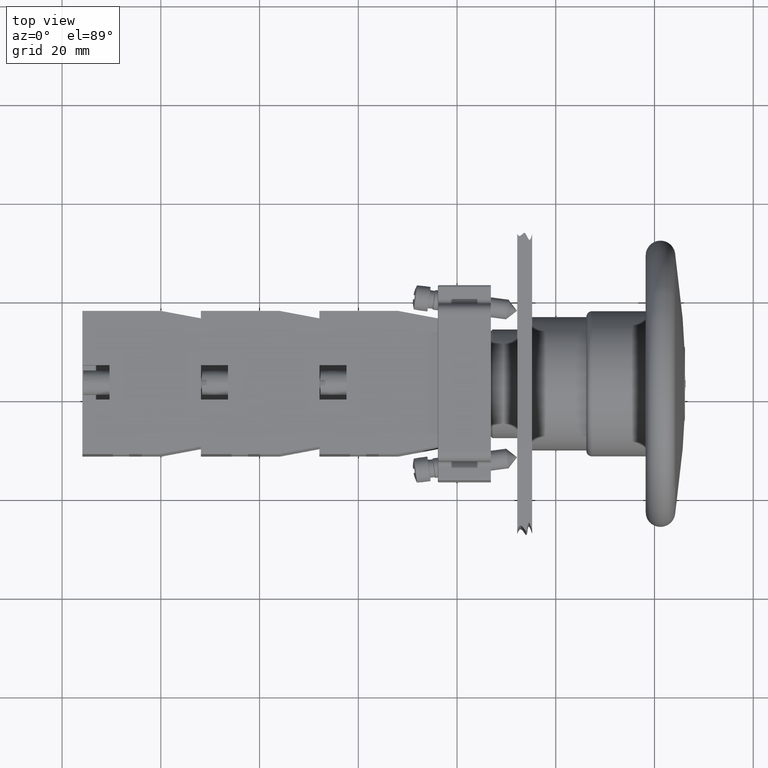
[diagram: clean part render]
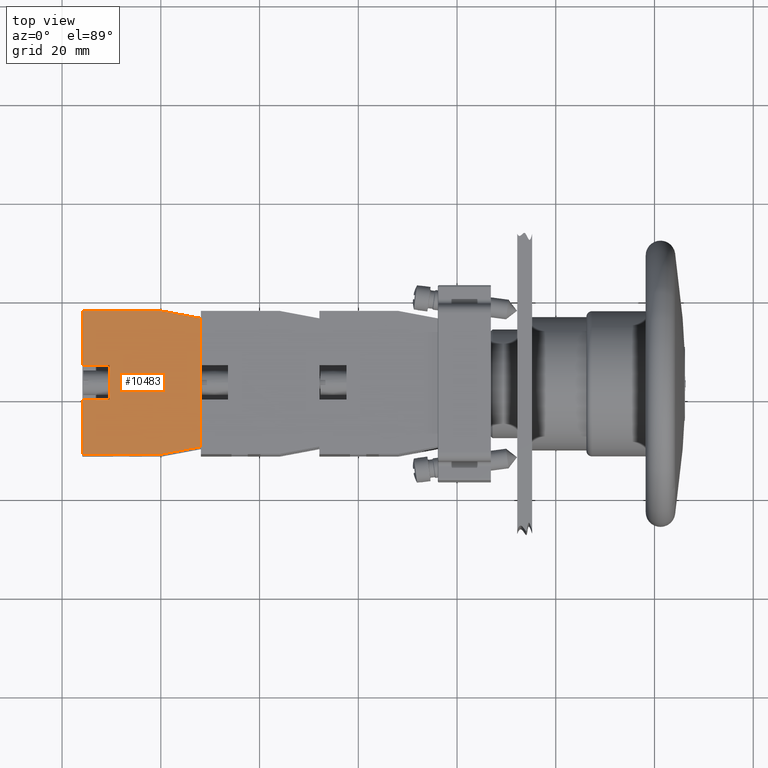
[diagram: same view with one face highlighted and labeled with its STEP entity id]
A machine part, top view. The second image highlights one B-rep face of the part: STEP entity #10483.
In plain terms, the highlighted planar face has unit normal (-0, 0, 1).
Its self-contained STEP definition (entity closure, byte-faithful):
#8786=CARTESIAN_POINT('',(-44.936741828918457,7.797073323279626,14.699999999999999));
#8787=VERTEX_POINT('',#8786);
#8794=CARTESIAN_POINT('',(-44.936741828918471,23.797073323279623,14.699999999999999));
#8795=VERTEX_POINT('',#8794);
#8796=CARTESIAN_POINT('',(-44.936741828918457,7.797073323279626,14.699999999999999));
#8797=DIRECTION('',(0.0,1.0,0.0));
#8798=VECTOR('',#8797,15.999999999999996);
#8799=LINE('',#8796,#8798);
#8800=EDGE_CURVE('',#8787,#8795,#8799,.T.);
#8867=CARTESIAN_POINT('',(-43.436741828918457,-0.202926676720380,14.699999999999999));
#8868=VERTEX_POINT('',#8867);
#8875=CARTESIAN_POINT('',(-43.436741828918457,-0.202926676720380,14.699999999999999));
#8876=DIRECTION('',(-0.184288535050185,0.982872186934322,0.0));
#8877=VECTOR('',#8876,8.139410298049860);
#8878=LINE('',#8875,#8877);
#8879=EDGE_CURVE('',#8868,#8787,#8878,.T.);
#9018=CARTESIAN_POINT('',(-17.436741828918457,-0.202926676720377,14.699999999999999));
#9019=VERTEX_POINT('',#9018);
#9026=CARTESIAN_POINT('',(-17.436741828918457,-0.202926676720377,14.699999999999999));
#9027=DIRECTION('',(-1.0,0.0,0.0));
#9028=VECTOR('',#9027,26.0);
#9029=LINE('',#9026,#9028);
#9030=EDGE_CURVE('',#9019,#8868,#9029,.T.);
#9111=CARTESIAN_POINT('',(-15.936741828918466,7.797073323279626,14.699999999999999));
#9112=VERTEX_POINT('',#9111);
#9119=CARTESIAN_POINT('',(-15.936741828918466,7.797073323279626,14.699999999999999));
#9120=DIRECTION('',(-0.184288535050184,-0.982872186934322,0.0));
#9121=VECTOR('',#9120,8.139410298049855);
#9122=LINE('',#9119,#9121);
#9123=EDGE_CURVE('',#9112,#9019,#9122,.T.);
#10218=CARTESIAN_POINT('',(-26.936741828918468,18.297073323279626,14.699999999999999));
#10219=VERTEX_POINT('',#10218);
#10228=CARTESIAN_POINT('',(-26.936741828918468,23.797073323279626,14.699999999999999));
#10229=VERTEX_POINT('',#10228);
#10230=CARTESIAN_POINT('',(-26.936741828918468,23.797073323279626,14.699999999999999));
#10231=DIRECTION('',(0.0,-1.0,0.0));
#10232=VECTOR('',#10231,5.500000000000000);
#10233=LINE('',#10230,#10232);
#10234=EDGE_CURVE('',#10229,#10219,#10233,.T.);
#10289=CARTESIAN_POINT('',(-33.936741828918464,18.297073323279619,14.699999999999999));
#10290=VERTEX_POINT('',#10289);
#10298=CARTESIAN_POINT('',(-33.936741828918464,23.797073323279623,14.699999999999999));
#10299=VERTEX_POINT('',#10298);
#10306=CARTESIAN_POINT('',(-33.936741828918464,18.297073323279619,14.699999999999999));
#10307=DIRECTION('',(0.0,1.0,0.0));
#10308=VECTOR('',#10307,5.500000000000004);
#10309=LINE('',#10306,#10308);
#10310=EDGE_CURVE('',#10290,#10299,#10309,.T.);
#10323=CARTESIAN_POINT('',(-26.936741828918468,18.297073323279626,14.699999999999999));
#10324=DIRECTION('',(-1.0,0.0,0.0));
#10325=VECTOR('',#10324,6.999999999999996);
#10326=LINE('',#10323,#10325);
#10327=EDGE_CURVE('',#10219,#10290,#10326,.T.);
#10343=CARTESIAN_POINT('',(-15.936741828918466,23.797073323279626,14.699999999999999));
#10344=VERTEX_POINT('',#10343);
#10345=CARTESIAN_POINT('',(-26.936741828918468,23.797073323279626,14.699999999999999));
#10346=DIRECTION('',(1.0,0.0,0.0));
#10347=VECTOR('',#10346,11.000000000000002);
#10348=LINE('',#10345,#10347);
#10349=EDGE_CURVE('',#10229,#10344,#10348,.T.);
#10366=CARTESIAN_POINT('',(-44.936741828918471,23.797073323279623,14.699999999999999));
#10367=DIRECTION('',(1.0,0.0,0.0));
#10368=VECTOR('',#10367,11.000000000000007);
#10369=LINE('',#10366,#10368);
#10370=EDGE_CURVE('',#8795,#10299,#10369,.T.);
#10414=CARTESIAN_POINT('',(-15.936741828918466,23.797073323279626,14.699999999999999));
#10415=DIRECTION('',(0.0,-1.0,0.0));
#10416=VECTOR('',#10415,16.0);
#10417=LINE('',#10414,#10416);
#10418=EDGE_CURVE('',#10344,#9112,#10417,.T.);
#10466=CARTESIAN_POINT('',(-30.436741828918457,12.124046801833057,14.699999999999999));
#10467=DIRECTION('',(0.0,0.0,1.0));
#10468=DIRECTION('',(1.0,0.0,0.0));
#10469=AXIS2_PLACEMENT_3D('',#10466,#10467,#10468);
#10470=PLANE('',#10469);
#10471=ORIENTED_EDGE('',*,*,#10310,.T.);
#10472=ORIENTED_EDGE('',*,*,#10370,.F.);
#10473=ORIENTED_EDGE('',*,*,#8800,.F.);
#10474=ORIENTED_EDGE('',*,*,#8879,.F.);
#10475=ORIENTED_EDGE('',*,*,#9030,.F.);
#10476=ORIENTED_EDGE('',*,*,#9123,.F.);
#10477=ORIENTED_EDGE('',*,*,#10418,.F.);
#10478=ORIENTED_EDGE('',*,*,#10349,.F.);
#10479=ORIENTED_EDGE('',*,*,#10234,.T.);
#10480=ORIENTED_EDGE('',*,*,#10327,.T.);
#10481=EDGE_LOOP('',(#10471,#10472,#10473,#10474,#10475,#10476,#10477,#10478,#10479,#10480));
#10482=FACE_OUTER_BOUND('',#10481,.T.);
#10483=ADVANCED_FACE('',(#10482),#10470,.T.);